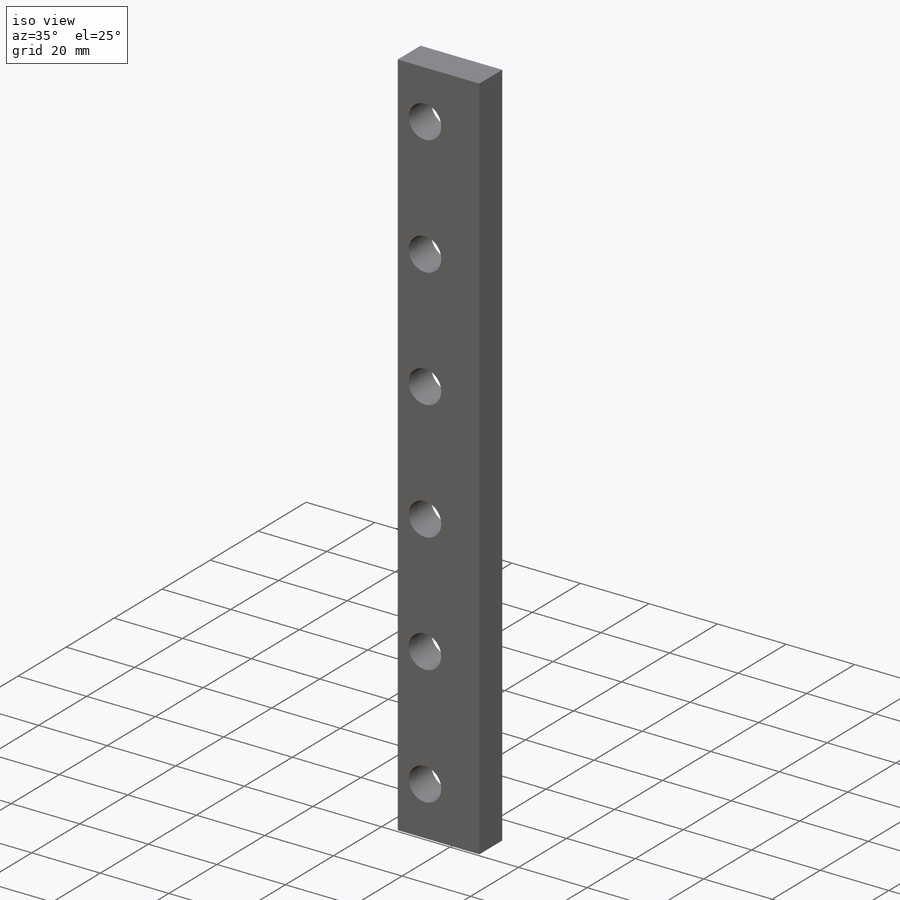
[diagram: iso view]
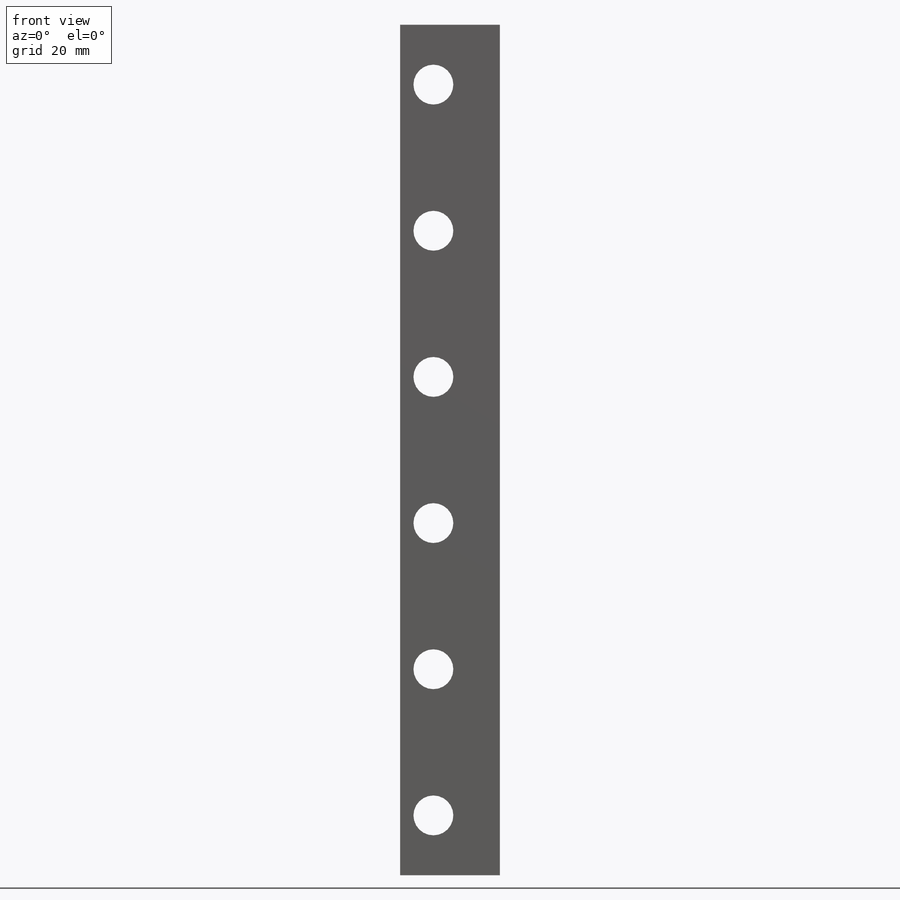
[diagram: front view]
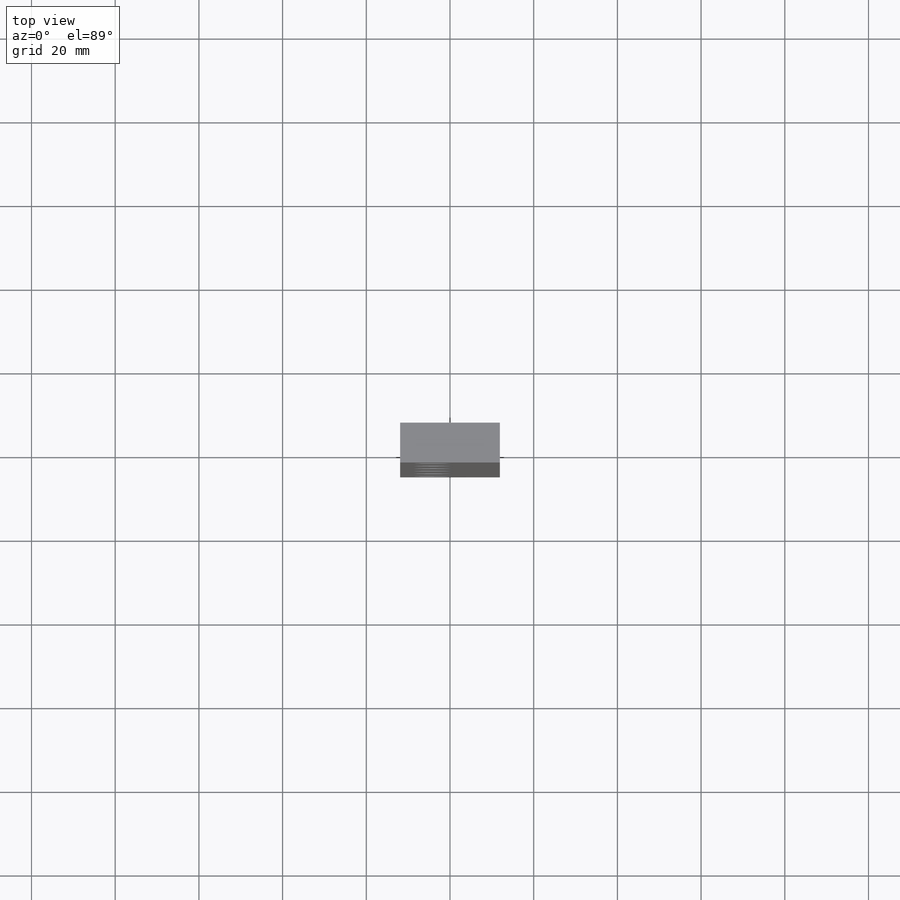
[diagram: top view]
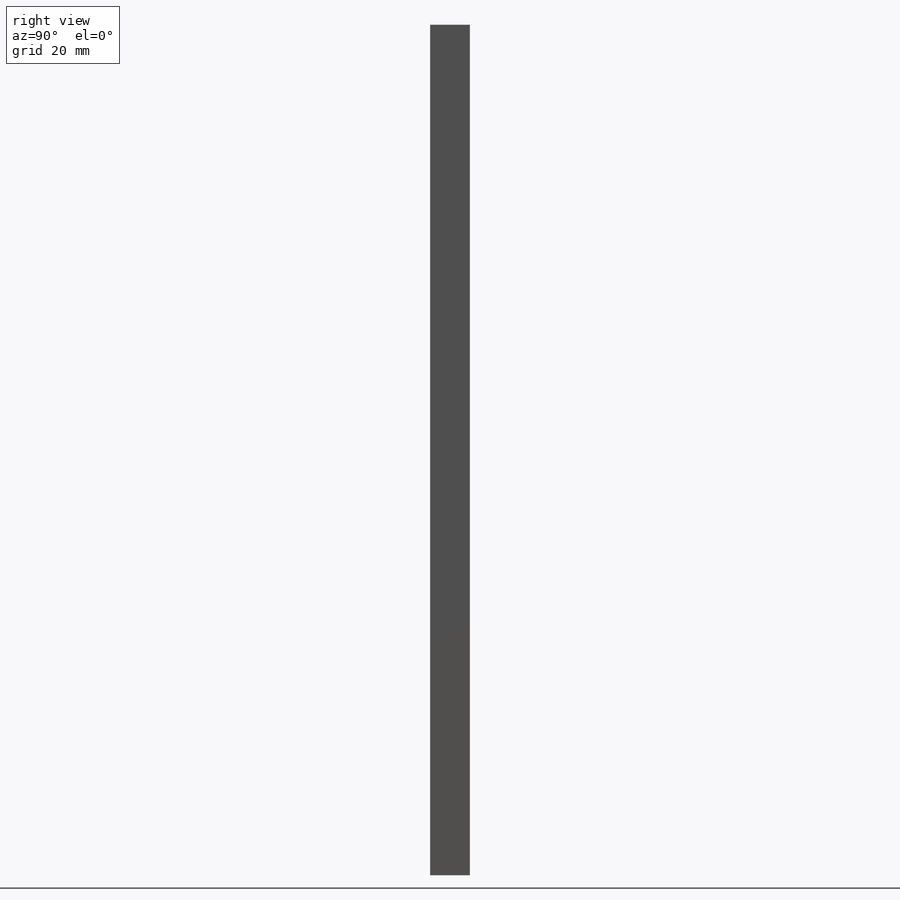
[diagram: right view]
SOLIDWORKS PART (.sldprt)
format: sldprt  version: not decoded by parser v0  size: 177,152 bytes
history: native  units: mm
features: sketch x3, material x1, extrude x1, hole x1 (+12 scaffold rows collapsed)
feature tree (18):
  scaffold x12  (default folders/planes/origin — collapsed)
  material  "Material <not specified>"
  sketch  "Sketch1"  dims[D1=23.8125mm D2=203.2mm]
  extrude  "Boss-Extrude1"  Depth=9.525mm
  hole  "3/8 (0.375) Diameter Hole1"  Diameter=9.525mm Depth=9.525mm
  sketch  "Sketch3"  dims[c1.D1=9.525mm c1.D2=34.925mm c1.D3=34.925mm c1.D4=34.925mm c1.D5=34.925mm c1.D6=~37.614209mm c1.D7=174.625mm c2.D1=15.875mm c2.D6=14.2875mm c2.D8=0.0mm c2.D9=14.2875mm c2.D10=49.2125mm c2.D11=84.1375mm c2.D12=119.0625mm c2.D13=153.9875mm c2.D14=188.9125mm]
  sketch  "Sketch2"  dims[hole-wizard template sketch: 61 standard entries collapsed; hole parameters above]
decode coverage: 5 of 5 modeling features carry decoded parameters
note: ~ marks probable driven/reference dimensions
note: suppression state not decoded; provenance and decode notes live in map.json
